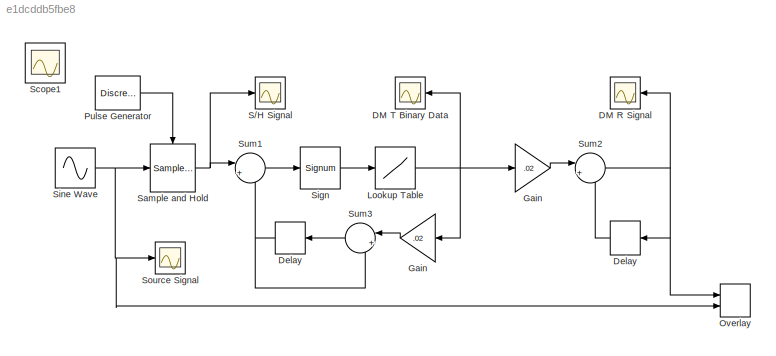
MODEL slx_e1dcddb5fbe8
KIND model
BLOCK [Scope] DM R Signal
  DataFormat = StructureWithTime
  Floating = off
  LimitDataPoints = off
  NumInputPorts = 1
  Ports = [1]
  ShowLegends = off
  TimeRange = 0.05
  YMax = 8
  YMin = -8
BLOCK [Scope] DM T Binary Data
  DataFormat = StructureWithTime
  Floating = off
  LimitDataPoints = off
  NumInputPorts = 1
  Ports = [1]
  SaveName = ScopeData1
  ShowLegends = off
  TimeRange = 0.05
  YMax = 8
  YMin = -8
BLOCK [Delay] Delay
  DelayLength = 5
  InputPortMap = u0
  InputProcessing = Inherited
  Ports = [1, 1]
BLOCK [Delay] Delay 
  DelayLength = 5
  InputPortMap = u0
  InputProcessing = Inherited
  Ports = [1, 1]
BLOCK [Gain] Gain
  Gain = .02
  OutDataTypeStr = Inherit: Inherit via internal rule
  ParamDataTypeStr = Inherit: Inherit via internal rule
  SaturateOnIntegerOverflow = off
BLOCK [Gain] Gain 
  Gain = .02
  OutDataTypeStr = Inherit: Inherit via internal rule
  ParamDataTypeStr = Inherit: Inherit via internal rule
  SaturateOnIntegerOverflow = off
BLOCK [Lookup] Lookup Table
  InputValues = [-1,0,1]
  SaturateOnIntegerOverflow = off
  Table = [-1,-1,1]
BLOCK [TimeScope] Overlay
  DefaultConfigurationName = spbscopes.TimeScopeBlockCfg
  NumInputPorts = 2
  Ports = [2]
  ScopeSpecificationString = spbscopes.TimeScopeBlockCfg('CurrentConfiguration', extmgr.ConfigurationSet(extmgr.Configuration('Core','General UI',true,'FigureColor',[0.313725490196078 0.313725490196078 0.313725490196078]),extmgr.Configuration('Core','Source UI',true),extmgr.Configuration('Sources','WiredSimulink',true,'DataLoggingVariableName','ScopeData6'),extmgr.Configuration('Visuals','Time Domain',true,'DisplayPropertyDef...<+1789ch>
  UserDataPersistent = on
BLOCK [DiscretePulseGenerator] Pulse Generator
  Period = 5e-4
  Ports = [0, 1]
  PulseType = Time based
  PulseWidth = 20
  VectorParams1D = off
BLOCK [Scope] S//H Signal
  DataFormat = StructureWithTime
  Floating = off
  LimitDataPoints = off
  NumInputPorts = 1
  Ports = [1]
  SaveName = ScopeData3
  ShowLegends = off
  TimeRange = 0.05
  YMax = 8
  YMin = -8
BLOCK [Reference] Sample and Hold  REF=dspsigops/Sample
and Hold
  Ports = [1, 1, 0, 1]
  SourceBlock = dspsigops/Sample\nand Hold
  SourceType = Sample and Hold
  initCond = 0
  latchinput = off
  trig = Rising edge
BLOCK [Scope] Scope1
  Floating = off
  IOType = viewer
  MaxDataPoints = 7500
  NumInputPorts = 1
  Ports = []
  SampleTime = -1
  ShowLegends = off
  YMax = 1.5
  YMin = -1.5
BLOCK [Signum] Sign
BLOCK [Sin] Sine Wave
  Frequency = 20*pi
  Ports = [0, 1]
  SampleTime = 1e-4
  Samples = 500000
  VectorParams1D = off
BLOCK [Scope] Source Signal
  DataFormat = StructureWithTime
  Floating = off
  LimitDataPoints = off
  NumInputPorts = 1
  Ports = [1]
  SaveName = ScopeData2
  ShowLegends = off
  TimeRange = 0.05
  YMax = 8
  YMin = -8
BLOCK [Sum] Sum1
  IconShape = round
  InputSameDT = off
  Inputs = |+-
  OutDataTypeStr = Inherit: Inherit via internal rule
  Ports = [2, 1]
  SaturateOnIntegerOverflow = off
BLOCK [Sum] Sum2
  IconShape = round
  InputSameDT = off
  Inputs = |++
  OutDataTypeStr = Inherit: Inherit via internal rule
  Ports = [2, 1]
  SaturateOnIntegerOverflow = off
BLOCK [Sum] Sum3
  IconShape = round
  InputSameDT = off
  Inputs = |++
  OutDataTypeStr = Inherit: Inherit via internal rule
  Ports = [2, 1]
  SaturateOnIntegerOverflow = off
LINE Delay :1 -> Sum2:2
NET Delay:1 -> Sum1:2, Sum3:2
LINE Gain :1 -> Sum2:1
LINE Gain:1 -> Sum3:1
NET Lookup Table:1 -> DM T Binary Data:1, Gain :1, Gain:1
LINE Pulse Generator:1 -> Sample and Hold:trigger
NET Sample and Hold:1 -> S//H Signal:1, Sum1:1
LINE Sign:1 -> Lookup Table:1
NET Sine Wave:1 -> Overlay:2, Sample and Hold:1, Source Signal:1
LINE Sum1:1 -> Sign:1
NET Sum2:1 -> DM R Signal:1, Delay :1, Overlay:1
LINE Sum3:1 -> Delay:1
note: NET lines group one-source signal fan-out (src -> all destinations, sorted); 1:1 wires keep LINE
